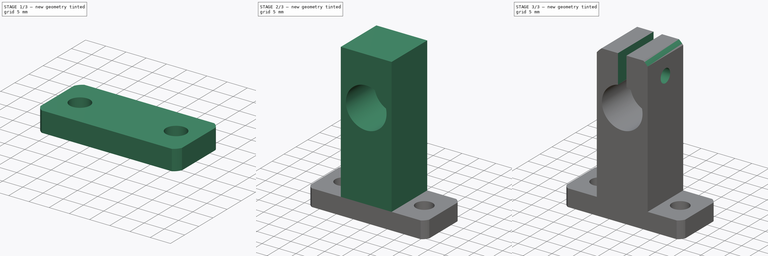
[diagram: build sequence overview — one tinted view per stage of 3, left to right]
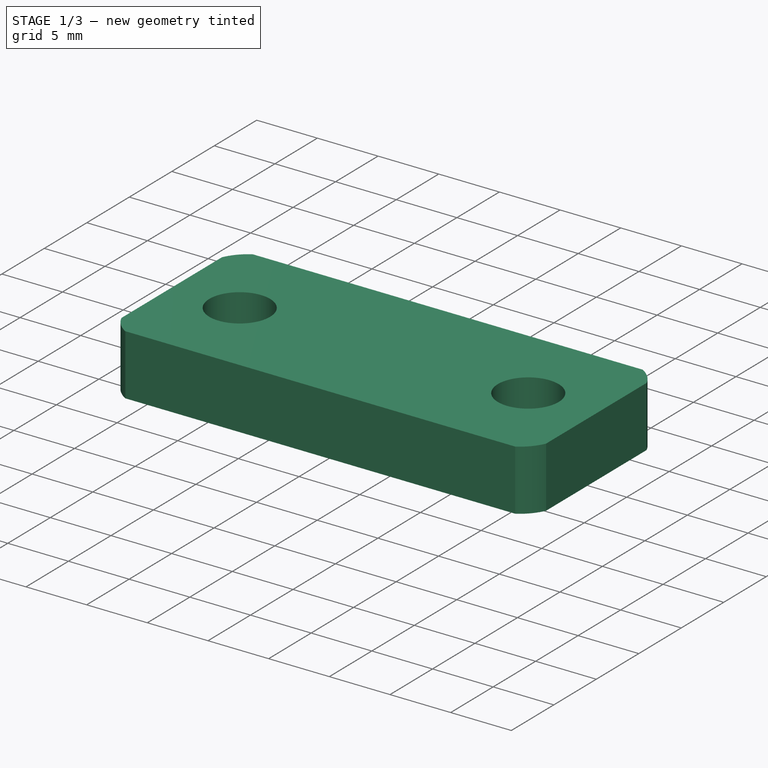
[diagram: stage 1 of 3 — iso view after this stage's code; geometry added in this stage tinted green]
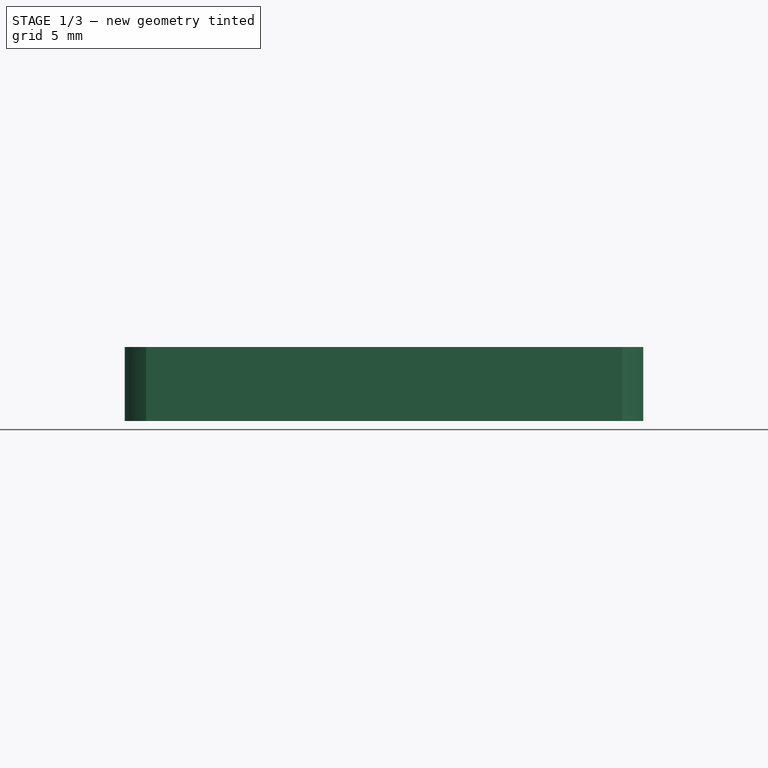
[diagram: stage 1 of 3 — front view after this stage's code; geometry added in this stage tinted green]
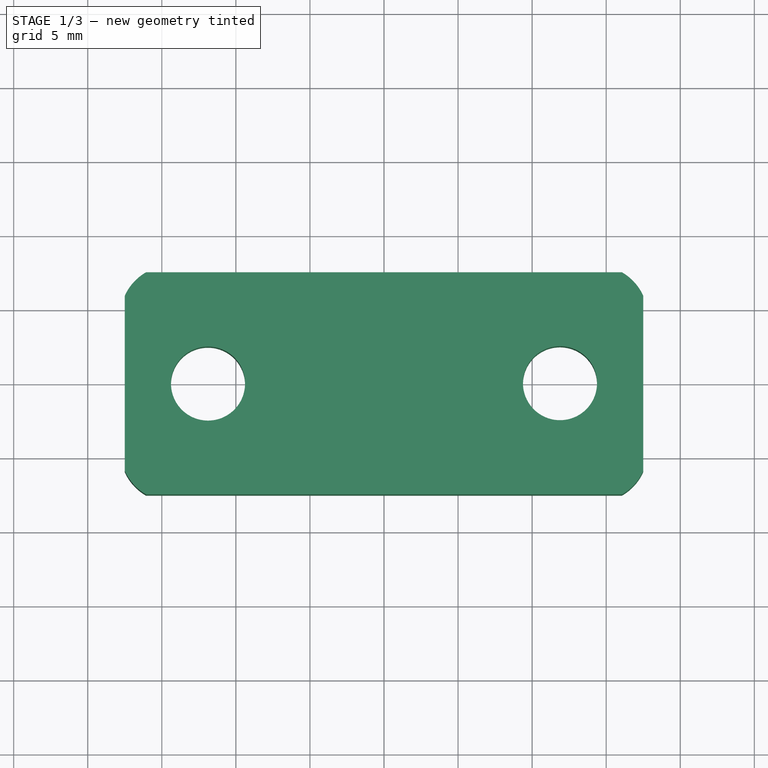
[diagram: stage 1 of 3 — top view after this stage's code; geometry added in this stage tinted green]
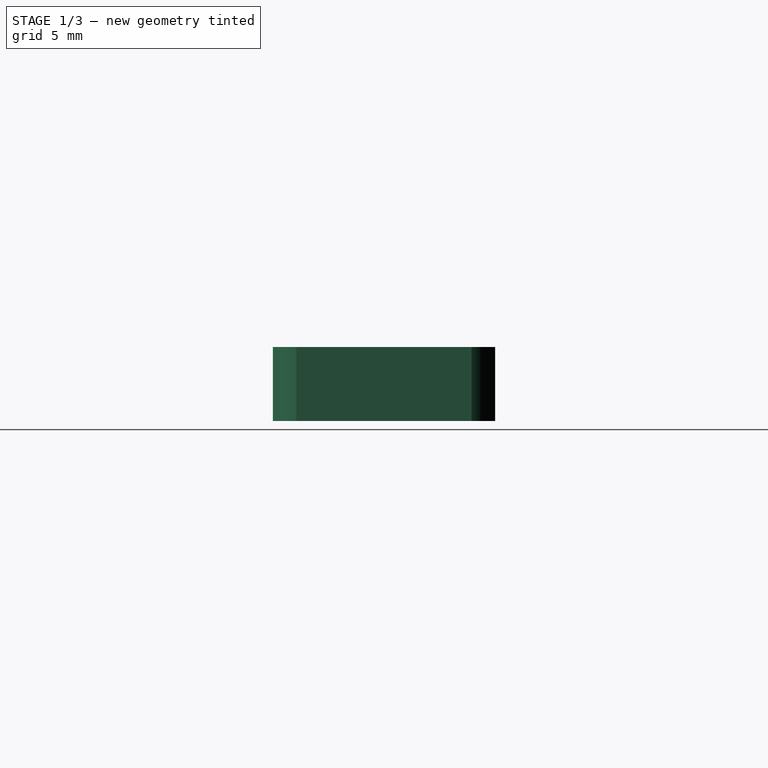
[diagram: stage 1 of 3 — right view after this stage's code; geometry added in this stage tinted green]
FCSTD DOCUMENT  (FreeCAD 1.0R39109 (Git))
Label: Varillero soporte 1
License: All rights reserved
LicenseURL: https://en.wikipedia.org/wiki/All_rights_reserved
objects: Sketcher::SketchObject×12, PartDesign::Pocket×4, PartDesign::Pad×2, PartDesign::Body×1
note: 43 computed .brp shape members not serialized (recipe doc carries the construction recipe); baked Part::Feature solids carry a one-line shape summary decoded from their .brp

FEATURE [Sketcher::SketchObject] Sketch
  ArcFitTolerance = 1e-06
  AttachmentSupport = -> [XY_Plane]
  FullyConstrained = true
  MakeInternals = false
  MapMode = 5
  sketch-geometry (5):
    g0: LineSegment StartX=-17.5 StartY=-7.5 StartZ=0 EndX=17.5 EndY=-7.5 EndZ=0
    g1: LineSegment StartX=17.5 StartY=-7.5 StartZ=0 EndX=17.5 EndY=7.5 EndZ=0
    g2: LineSegment StartX=17.5 StartY=7.5 StartZ=0 EndX=-17.5 EndY=7.5 EndZ=0
    g3: LineSegment StartX=-17.5 StartY=7.5 StartZ=0 EndX=-17.5 EndY=-7.5 EndZ=0
    g4: GeomPoint [constr] X=0 Y=0 Z=0
  constraints (12):
    c: Coincident(g0,g1)
    c: Coincident(g1,g2)
    c: Coincident(g2,g3)
    c: Coincident(g3,g0)
    c: Horizontal(g0)
    c: Horizontal(g2)
    c: Vertical(g1)
    c: Vertical(g3)
    c: Symmetric(g2,g0,g4)
    c: Distance(g1,g3) = 35
    c: Distance(g0,g2) = 15
    c: Coincident(g4,g-1)
FEATURE [PartDesign::Pad] Pad
  Direction = (0,0,1)
  Length = 5
  Length2 = 10
  Profile = -> Sketch
  ReferenceAxis = -> Sketch [N_Axis]
  Refine = true
  Suppressed = false
  Type = 0
FEATURE [Sketcher::SketchObject] Sketch001
  ArcFitTolerance = 1e-06
  AttachmentSupport = -> [Pad]
  FullyConstrained = true
  MakeInternals = false
  MapMode = 5
  Placement = pos=(0,0,5) rot=(0,0,1;0rad)
  sketch-geometry (5):
    g0: LineSegment StartX=-7.5 StartY=-7.5 StartZ=0 EndX=7.5 EndY=-7.5 EndZ=0
    g1: LineSegment StartX=7.5 StartY=-7.5 StartZ=0 EndX=7.5 EndY=7.5 EndZ=0
    g2: LineSegment StartX=7.5 StartY=7.5 StartZ=0 EndX=-7.5 EndY=7.5 EndZ=0
    g3: LineSegment StartX=-7.5 StartY=7.5 StartZ=0 EndX=-7.5 EndY=-7.5 EndZ=0
    g4: GeomPoint [constr] X=0 Y=0 Z=0
  constraints (12):
    c: Coincident(g0,g1)
    c: Coincident(g1,g2)
    c: Coincident(g2,g3)
    c: Coincident(g3,g0)
    c: Horizontal(g0)
    c: Horizontal(g2)
    c: Vertical(g1)
    c: Vertical(g3)
    c: Symmetric(g2,g0,g4)
    c: Distance(g1,g3) = 15
    c: Distance(g0,g2) = 15
    c: Coincident(g4,g-1)
FEATURE [Sketcher::SketchObject] Sketch002
  ArcFitTolerance = 1e-06
  AttachmentSupport = -> [Pad]
  FullyConstrained = false
  MakeInternals = false
  MapMode = 5
  Placement = pos=(0,0,5) rot=(0,0,1;0rad)
  sketch-geometry (14):
    g0: Circle CenterX=-11.881 CenterY=-0.0133288 CenterZ=0 NormalX=0 NormalY=0 NormalZ=1 AngleXU=0 Radius=2.5
    g1: Circle CenterX=11.881 CenterY=0.0133288 CenterZ=0 NormalX=0 NormalY=0 NormalZ=1 AngleXU=0 Radius=2.5
    g2: ArcOfCircle CenterX=-14.3454 CenterY=4.50012 CenterZ=0 NormalX=0 NormalY=0 NormalZ=1 AngleXU=0 Radius=3.45834 StartAngle=1.54409 EndAngle=3.16511
    g3: LineSegment StartX=-17.8028 StartY=4.41879 StartZ=0 EndX=-17.8842 EndY=7.88026 EndZ=0
    g4: LineSegment StartX=-17.8842 StartY=7.88026 StartZ=0 EndX=-14.253 EndY=7.95722 EndZ=0
    g5: ArcOfCircle CenterX=-14.3454 CenterY=-4.50012 CenterZ=0 NormalX=0 NormalY=0 NormalZ=1 AngleXU=0 Radius=3.45834 StartAngle=3.11807 EndAngle=4.7391
    g6: LineSegment StartX=-17.8028 StartY=-4.41879 StartZ=0 EndX=-17.8842 EndY=-7.88026 EndZ=0
    g7: LineSegment StartX=-17.8842 StartY=-7.88026 StartZ=0 EndX=-14.253 EndY=-7.95722 EndZ=0
    g8: ArcOfCircle CenterX=14.3454 CenterY=4.50012 CenterZ=0 NormalX=0 NormalY=0 NormalZ=1 AngleXU=0 Radius=3.45834 StartAngle=6.25967 EndAngle=7.88069
    g9: LineSegment StartX=17.8028 StartY=4.41879 StartZ=0 EndX=17.8842 EndY=7.88026 EndZ=0
    g10: LineSegment StartX=17.8842 StartY=7.88026 StartZ=0 EndX=14.253 EndY=7.95722 EndZ=0
    g11: ArcOfCircle CenterX=14.3454 CenterY=-4.50012 CenterZ=0 NormalX=0 NormalY=0 NormalZ=1 AngleXU=0 Radius=3.45834 StartAngle=4.68568 EndAngle=6.3067
    g12: LineSegment StartX=17.8028 StartY=-4.41879 StartZ=0 EndX=17.8842 EndY=-7.88026 EndZ=0
    g13: LineSegment StartX=17.8842 StartY=-7.88026 StartZ=0 EndX=14.253 EndY=-7.95722 EndZ=0
  constraints (14):
    c: Diameter(g0) = 5
    c: Diameter(g1) = 5
    c: Tangent(g3,g2) = 1.5708
    c: Coincident(g4,g3)
    c: Coincident(g4,g2)
    c: Tangent(g6,g5) = -1.5708
    c: Coincident(g7,g6)
    c: Coincident(g7,g5)
    c: Tangent(g9,g8) = -1.5708
    c: Coincident(g10,g9)
    c: Coincident(g10,g8)
    c: Tangent(g12,g11) = 1.5708
    c: Coincident(g13,g12)
    c: Coincident(g13,g11)
FEATURE [Sketcher::SketchObject] Sketch003
  ArcFitTolerance = 1e-06
  AttachmentSupport = -> [XZ_Plane]
  FullyConstrained = false
  MakeInternals = false
  MapMode = 5
  Placement = pos=(0,0,0) rot=(1,0,0;1.5708rad)
  sketch-geometry (4):
    g0: LineSegment StartX=-8.65922 StartY=43.5021 StartZ=0 EndX=-8.65922 EndY=26.3944 EndZ=0
    g1: LineSegment StartX=-8.65922 StartY=26.3944 StartZ=0 EndX=8.58758 EndY=26.3944 EndZ=0
    g2: LineSegment StartX=8.58758 StartY=26.3944 StartZ=0 EndX=8.58758 EndY=43.5021 EndZ=0
    g3: LineSegment StartX=8.58758 StartY=43.5021 StartZ=0 EndX=-8.65922 EndY=43.5021 EndZ=0
  constraints (8):
    c: Coincident(g0,g1)
    c: Coincident(g1,g2)
    c: Coincident(g2,g3)
    c: Coincident(g3,g0)
    c: Vertical(g0)
    c: Vertical(g2)
    c: Horizontal(g1)
    c: Horizontal(g3)
FEATURE [Sketcher::SketchObject] Sketch004
  ArcFitTolerance = 1e-06
  FullyConstrained = false
  MakeInternals = false
  MapMode = 5
  Placement = pos=(0,-4.5,0) rot=(1,0,0;1.5708rad)
  sketch-geometry (1):
    g0: Circle CenterX=0 CenterY=35.0338 CenterZ=0 NormalX=0 NormalY=0 NormalZ=1 AngleXU=0 Radius=6
  constraints (2):
    c: Diameter(g0) = 12
    c: PointOnObject(g0,g-2)
FEATURE [Sketcher::SketchObject] Sketch006
  ArcFitTolerance = 1e-06
  AttachmentSupport = -> [YZ_Plane]
  FullyConstrained = false
  MakeInternals = false
  MapMode = 5
  Placement = pos=(0,0,0) rot=(0.57735,0.57735,0.57735;2.0944rad)
  sketch-geometry (1):
    g0: Circle CenterX=0 CenterY=35.0153 CenterZ=0 NormalX=0 NormalY=0 NormalZ=1 AngleXU=0 Radius=1.5
  constraints (2):
    c: Diameter(g0) = 3
    c: PointOnObject(g0,g-2)
FEATURE [Sketcher::SketchObject] Sketch007
  ArcFitTolerance = 1e-06
  FullyConstrained = false
  MakeInternals = false
  MapMode = 5
  Placement = pos=(0,-5,0) rot=(1,0,0;1.5708rad)
  sketch-geometry (12):
    g0: ArcOfCircle CenterX=-4.10395 CenterY=38.7957 CenterZ=0 NormalX=0 NormalY=0 NormalZ=1 AngleXU=0 Radius=5.1311 StartAngle=1.81029 EndAngle=2.99655
    g1: LineSegment StartX=-9.18117 StartY=39.5373 StartZ=0 EndX=-9.18117 EndY=43.7803 EndZ=0
    g2: LineSegment StartX=-5.32112 StartY=43.7804 StartZ=0 EndX=-9.18117 EndY=43.7803 EndZ=0
    g3: ArcOfCircle CenterX=4.10395 CenterY=38.7957 CenterZ=0 NormalX=0 NormalY=0 NormalZ=1 AngleXU=0 Radius=5.17713 StartAngle=0.228919 EndAngle=1.31598
    g4: LineSegment StartX=9.14601 StartY=39.9705 StartZ=0 EndX=9.14601 EndY=43.7803 EndZ=0
    g5: LineSegment StartX=5.40891 StartY=43.8057 StartZ=0 EndX=9.14601 EndY=43.7803 EndZ=0
    g6: ArcOfCircle CenterX=4.02039 CenterY=31.1611 CenterZ=0 NormalX=0 NormalY=0 NormalZ=1 AngleXU=0 Radius=5.13111 StartAngle=4.96466 EndAngle=6.15091
    g7: LineSegment StartX=9.10668 StartY=30.4844 StartZ=0 EndX=9.16086 EndY=26.2418 EndZ=0
    g8: LineSegment StartX=5.30113 StartY=26.1924 StartZ=0 EndX=9.16086 EndY=26.2418 EndZ=0
    g9: ArcOfCircle CenterX=-4.18682 CenterY=31.0563 CenterZ=0 NormalX=0 NormalY=0 NormalZ=1 AngleXU=0 Radius=5.17713 StartAngle=3.38328 EndAngle=4.47035
    g10: LineSegment StartX=-9.21348 StartY=29.8172 StartZ=0 EndX=-9.16482 EndY=26.0077 EndZ=0
    g11: LineSegment StartX=-5.4277 StartY=26.0301 StartZ=0 EndX=-9.16482 EndY=26.0077 EndZ=0
  constraints (14):
    c: Coincident(g1,g0)
    c: Vertical(g1)
    c: Coincident(g2,g0)
    c: Coincident(g2,g1)
    c: Coincident(g4,g3)
    c: Vertical(g4)
    c: Coincident(g5,g3)
    c: Coincident(g5,g4)
    c: Coincident(g7,g6)
    c: Coincident(g8,g6)
    c: Coincident(g8,g7)
    c: Coincident(g10,g9)
    c: Coincident(g11,g9)
    c: Coincident(g11,g10)
FEATURE [Sketcher::SketchObject] Sketch008
  ArcFitTolerance = 1e-06
  AttachmentSupport = -> [Pad]
  FullyConstrained = true
  MakeInternals = false
  MapMode = 5
  Placement = pos=(0,0,5) rot=(0,0,1;0rad)
FEATURE [PartDesign::Pocket] Pocket
  BaseFeature = -> Pad
  Direction = (0,0,-1)
  Length = 5
  Length2 = 5
  Profile = -> Sketch002
  ReferenceAxis = -> Sketch002 [N_Axis]
  Refine = true
  Suppressed = false
  Type = 0
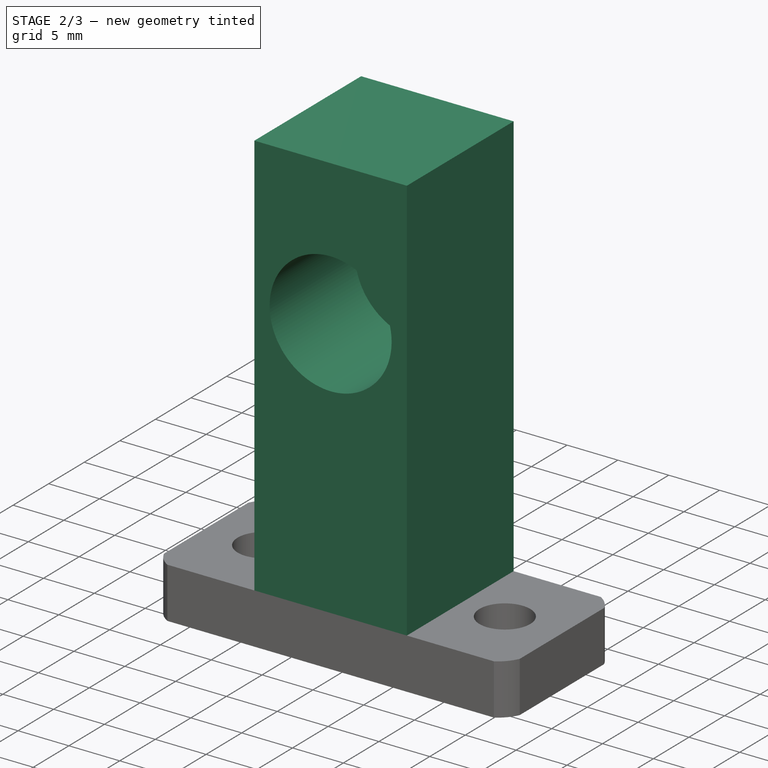
[diagram: stage 2 of 3 — iso view after this stage's code; geometry added in this stage tinted green]
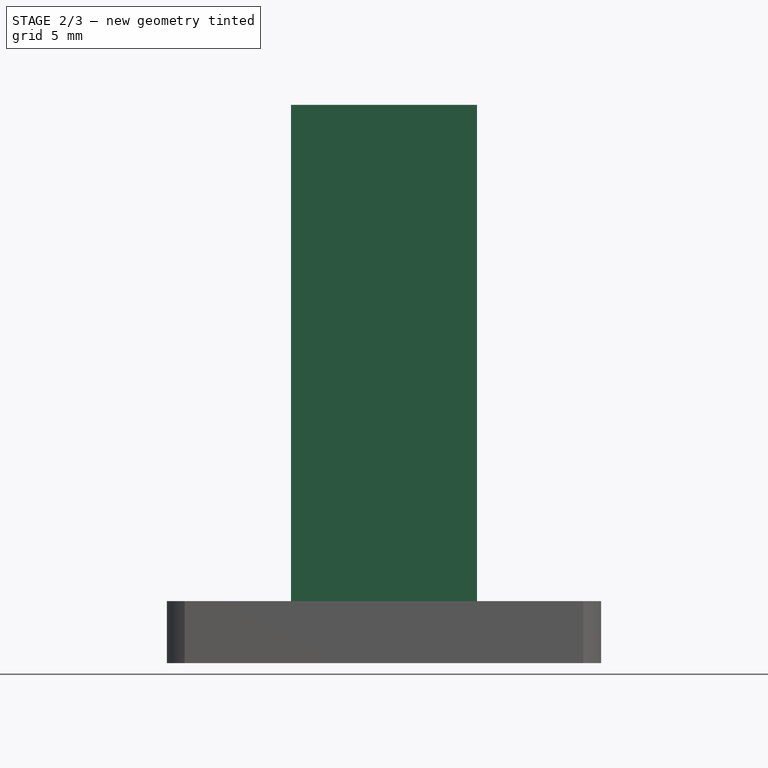
[diagram: stage 2 of 3 — front view after this stage's code; geometry added in this stage tinted green]
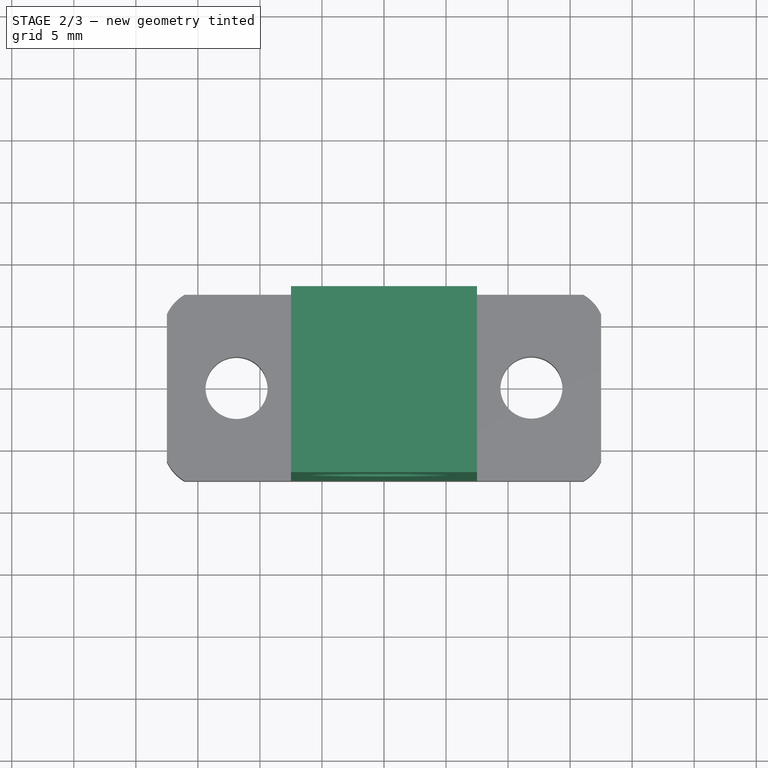
[diagram: stage 2 of 3 — top view after this stage's code; geometry added in this stage tinted green]
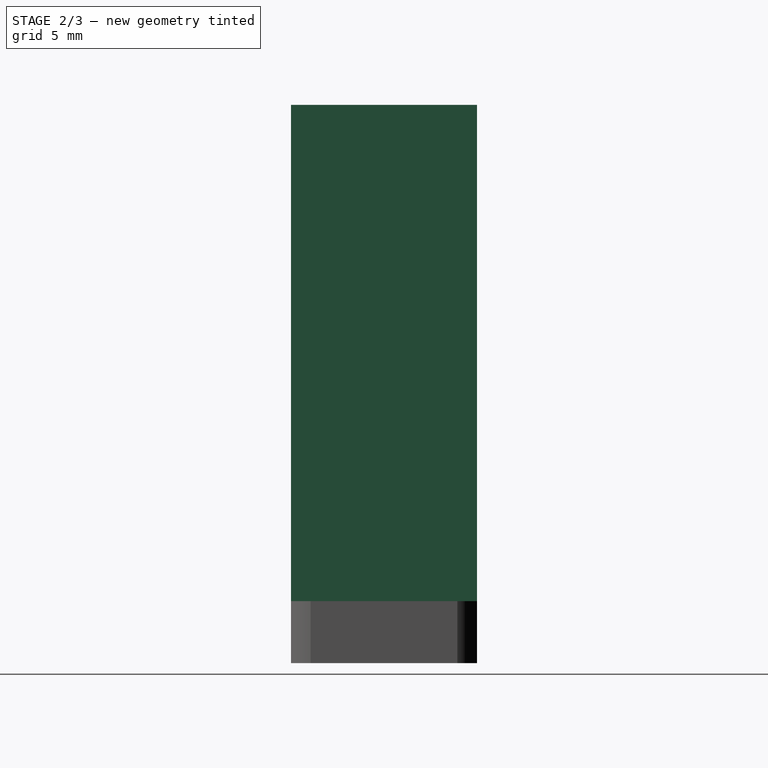
[diagram: stage 2 of 3 — right view after this stage's code; geometry added in this stage tinted green]
FEATURE [PartDesign::Pad] Pad001
  BaseFeature = -> Pocket
  Direction = (0,0,1)
  Length = 40
  Length2 = 10
  Profile = -> Sketch001
  ReferenceAxis = -> Sketch001 [N_Axis]
  Refine = true
  Suppressed = false
  Type = 0
FEATURE [Sketcher::SketchObject] Sketch009
  ArcFitTolerance = 1e-06
  AttachmentSupport = -> [Pad001]
  FullyConstrained = false
  MakeInternals = false
  MapMode = 5
  Placement = pos=(0,-7.5,0) rot=(1,0,0;1.5708rad)
  sketch-geometry (1):
    g0: Circle CenterX=0 CenterY=30.7171 CenterZ=0 NormalX=0 NormalY=0 NormalZ=1 AngleXU=0 Radius=6
  constraints (2):
    c: Diameter(g0) = 12
    c: PointOnObject(g0,g-2)
FEATURE [Sketcher::SketchObject] Sketch010
  ArcFitTolerance = 1e-06
  AttachmentSupport = -> [Pad001]
  FullyConstrained = false
  MakeInternals = false
  MapMode = 5
  Placement = pos=(0,0,45) rot=(0,0,1;0rad)
  sketch-geometry (3):
    g0: ArcOfCircle CenterX=-5.16812e-05 CenterY=-1e-15 CenterZ=0 NormalX=0 NormalY=0 NormalZ=1 AngleXU=0 Radius=8.15719 StartAngle=1.57079 EndAngle=3.14159
    g1: LineSegment StartX=-8.15725 StartY=0 StartZ=0 EndX=-8.15725 EndY=8.15725 EndZ=0
    g2: LineSegment StartX=-8.15725 StartY=8.15725 StartZ=0 EndX=0 EndY=8.15719 EndZ=0
  constraints (6):
    c: PointOnObject(g0,g-1)
    c: PointOnObject(g0,g-2)
    c: Tangent(g1,g0) = 1.5708
    c: Vertical(g1)
    c: Coincident(g2,g1)
    c: Tangent(g2,g0) = 1.5708
FEATURE [PartDesign::Pocket] Pocket001
  BaseFeature = -> Pad001
  Direction = (0,1,-2e-16)
  Length = 12
  Length2 = 5
  Profile = -> Sketch009 [Edge1]
  ReferenceAxis = -> Sketch009 [N_Axis]
  Refine = true
  Suppressed = false
  Type = 0
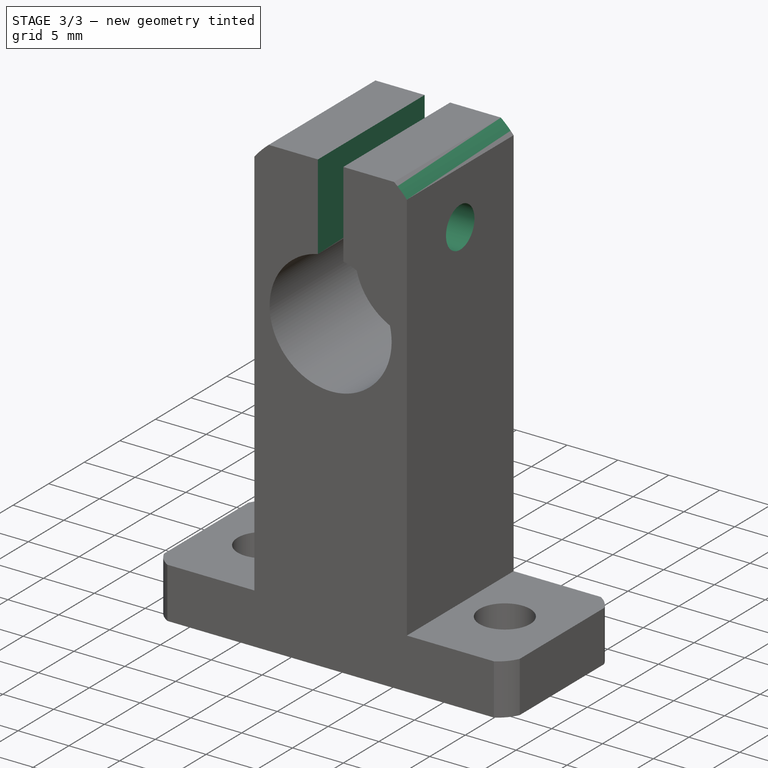
[diagram: stage 3 of 3 — iso view after this stage's code; geometry added in this stage tinted green]
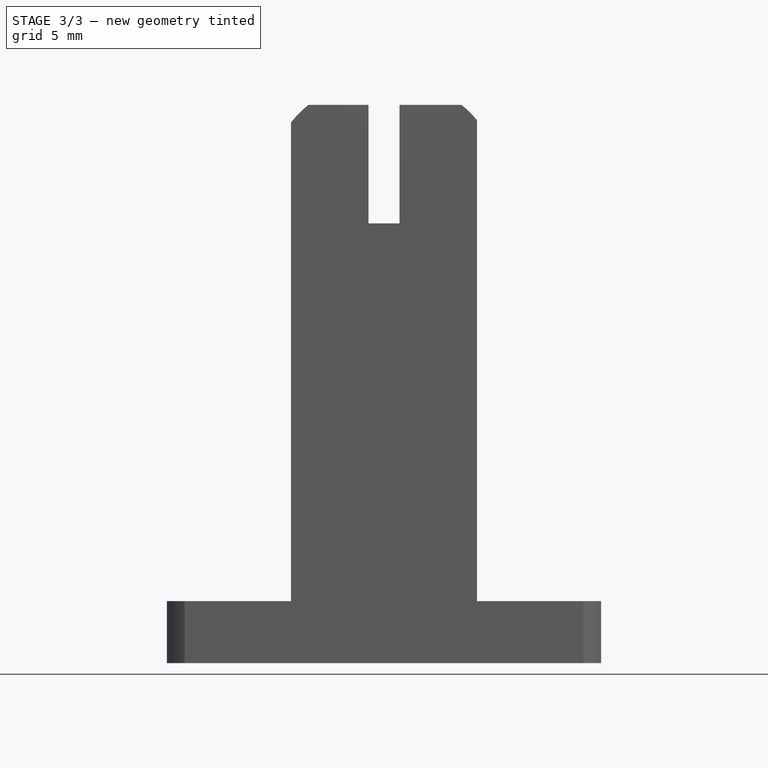
[diagram: stage 3 of 3 — front view after this stage's code; geometry added in this stage tinted green]
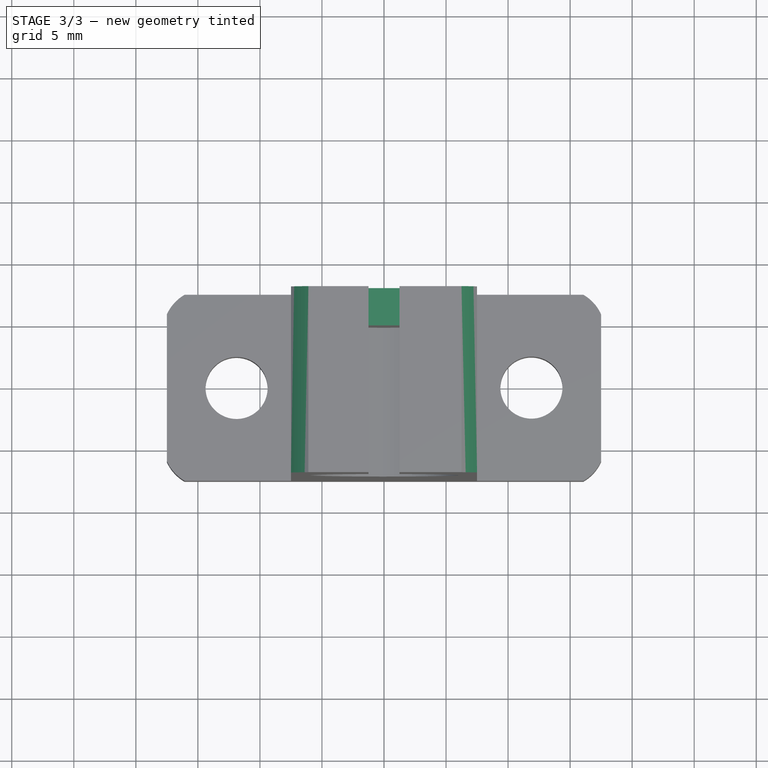
[diagram: stage 3 of 3 — top view after this stage's code; geometry added in this stage tinted green]
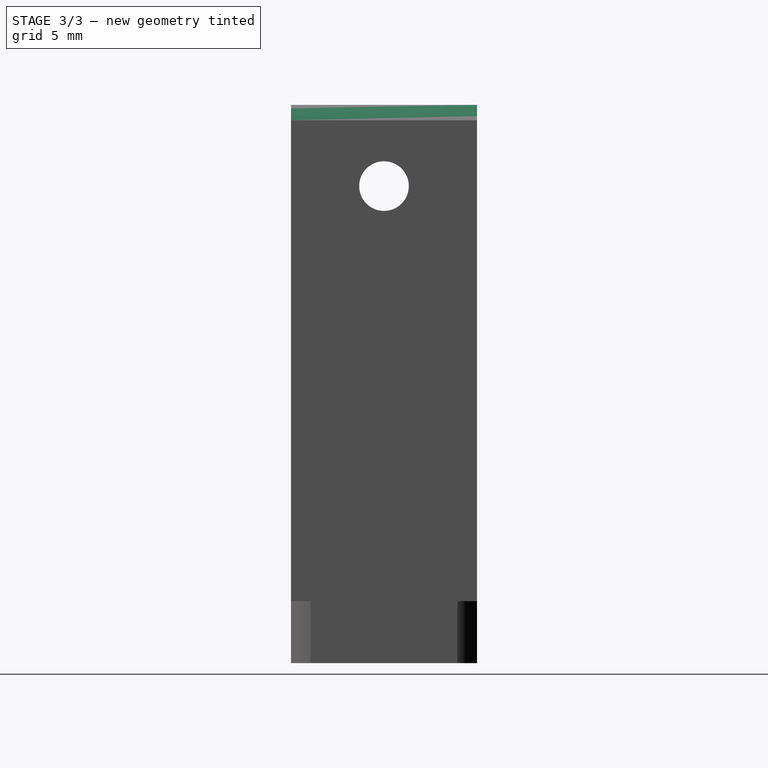
[diagram: stage 3 of 3 — right view after this stage's code; geometry added in this stage tinted green]
FEATURE [Sketcher::SketchObject] Sketch011
  ArcFitTolerance = 1e-06
  AttachmentSupport = -> [Pocket001]
  FullyConstrained = false
  MakeInternals = false
  MapMode = 5
  Placement = pos=(-7.5,0,0) rot=(0.57735,-0.57735,-0.57735;2.0944rad)
  sketch-geometry (1):
    g0: Circle CenterX=0 CenterY=38.4504 CenterZ=0 NormalX=0 NormalY=0 NormalZ=1 AngleXU=0 Radius=2
  constraints (2):
    c: Diameter(g0) = 4
    c: PointOnObject(g0,g-2)
FEATURE [PartDesign::Pocket] Pocket002
  BaseFeature = -> Pocket001
  Direction = (1,0,0)
  Length = 20
  Length2 = 5
  Profile = -> Sketch011
  ReferenceAxis = -> Sketch011 [N_Axis]
  Refine = true
  Suppressed = false
  Type = 0
FEATURE [Sketcher::SketchObject] Sketch012
  ArcFitTolerance = 1e-06
  AttachmentSupport = -> [Pocket002]
  FullyConstrained = false
  MakeInternals = false
  MapMode = 5
  Placement = pos=(0,-7.5,0) rot=(1,0,0;1.5708rad)
  sketch-geometry (11):
    g0: LineSegment StartX=-1.25 StartY=35.4447 StartZ=0 EndX=1.25 EndY=35.4447 EndZ=0
    g1: LineSegment StartX=1.25 StartY=35.4447 StartZ=0 EndX=1.25 EndY=45.4447 EndZ=0
    g2: LineSegment StartX=1.25 StartY=45.4447 StartZ=0 EndX=-1.25 EndY=45.4447 EndZ=0
    g3: LineSegment StartX=-1.25 StartY=45.4447 StartZ=0 EndX=-1.25 EndY=35.4447 EndZ=0
    g4: GeomPoint [constr] X=0 Y=40.4447 Z=0
    g5: ArcOfCircle CenterX=0.276808 CenterY=37.299 CenterZ=0 NormalX=0 NormalY=0 NormalZ=1 AngleXU=0 Radius=9.99439 StartAngle=2.01276 EndAngle=2.53175
    g6: LineSegment StartX=-7.916 StartY=43.0231 StartZ=0 EndX=-7.916 EndY=46.3331 EndZ=0
    g7: LineSegment StartX=-7.916 StartY=46.3331 StartZ=0 EndX=-3.99792 EndY=46.3331 EndZ=0
    g8: ArcOfCircle CenterX=0.100001 CenterY=37.5256 CenterZ=0 NormalX=0 NormalY=0 NormalZ=1 AngleXU=0 Radius=9.67698 StartAngle=0.611335 EndAngle=1.12901
    g9: LineSegment StartX=8.02431 StartY=43.0798 StartZ=0 EndX=8.02431 EndY=46.2735 EndZ=0
    g10: LineSegment StartX=8.02431 StartY=46.2735 StartZ=0 EndX=4.23749 EndY=46.2735 EndZ=0
  constraints (22):
    c: Coincident(g0,g1)
    c: Coincident(g1,g2)
    c: Coincident(g2,g3)
    c: Coincident(g3,g0)
    c: Horizontal(g0)
    c: Horizontal(g2)
    c: Vertical(g1)
    c: Vertical(g3)
    c: Symmetric(g2,g0,g4)
    c: Distance(g1,g3) = 2.5
    c: Distance(g0,g2) = 10
    c: PointOnObject(g4,g-2)
    c: Coincident(g6,g5)
    c: Vertical(g6)
    c: Coincident(g7,g6)
    c: Coincident(g7,g5)
    c: Horizontal(g7)
    c: Coincident(g9,g8)
    c: Vertical(g9)
    c: Coincident(g10,g9)
    c: Coincident(g10,g8)
    c: Horizontal(g10)
FEATURE [PartDesign::Pocket] Pocket003
  BaseFeature = -> Pocket002
  Direction = (0,1,-2e-16)
  Length = 30
  Length2 = 5
  Profile = -> Sketch012
  ReferenceAxis = -> Sketch012 [N_Axis]
  Refine = true
  Suppressed = false
  Type = 0
FEATURE [PartDesign::Body] Body
  AllowCompound = false
  Group = -> [Sketch,Pad,Sketch001,Sketch002,Sketch003,Sketch004,Sketch006,Sketch007,Sketch008,Pocket,Pad001,Sketch009,Sketch010,Pocket001,Sketch011,Pocket002,Sketch012,Pocket003]
  Origin = -> Origin
  Tip = -> Pocket003
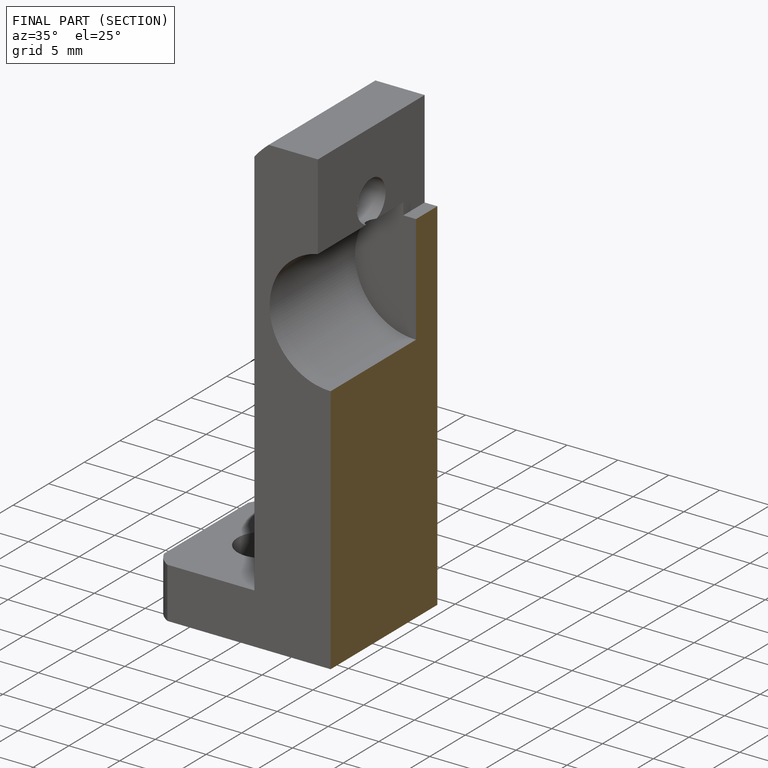
[diagram: finished part — half-section view (interior)]
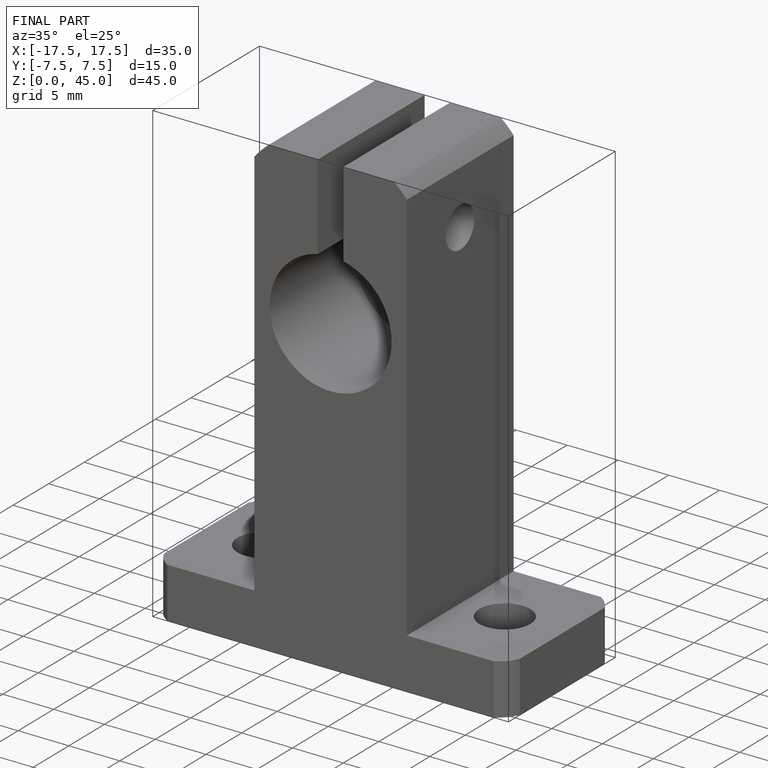
[diagram: finished part — iso view with bounding-box wireframe]
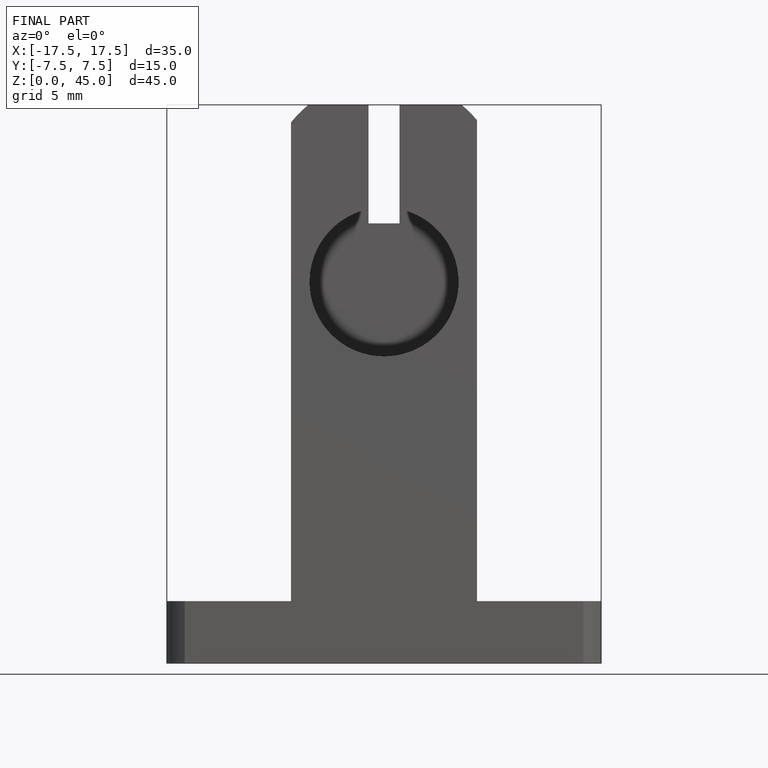
[diagram: finished part — front view with bounding-box wireframe]
